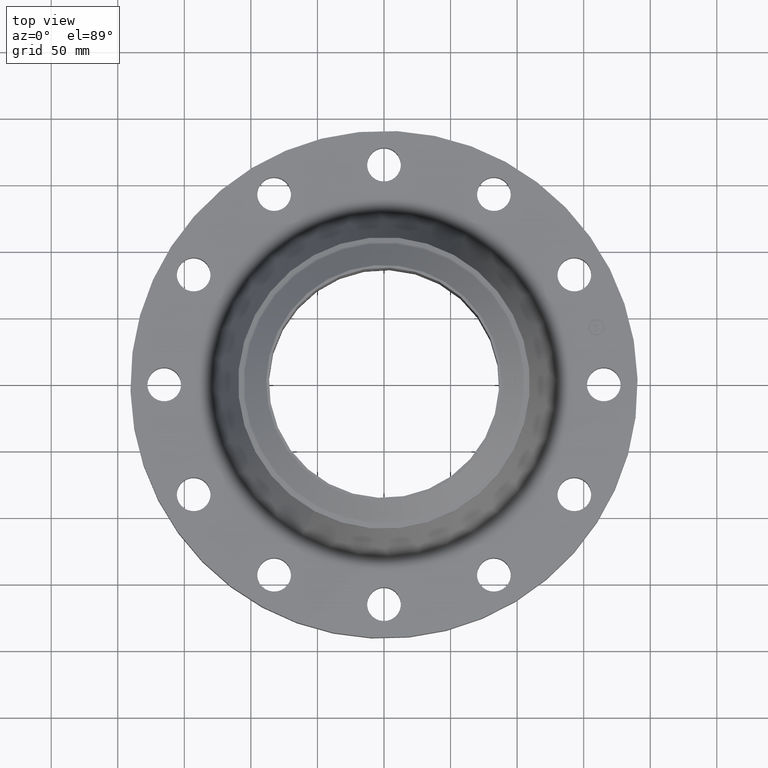
[diagram: clean part render]
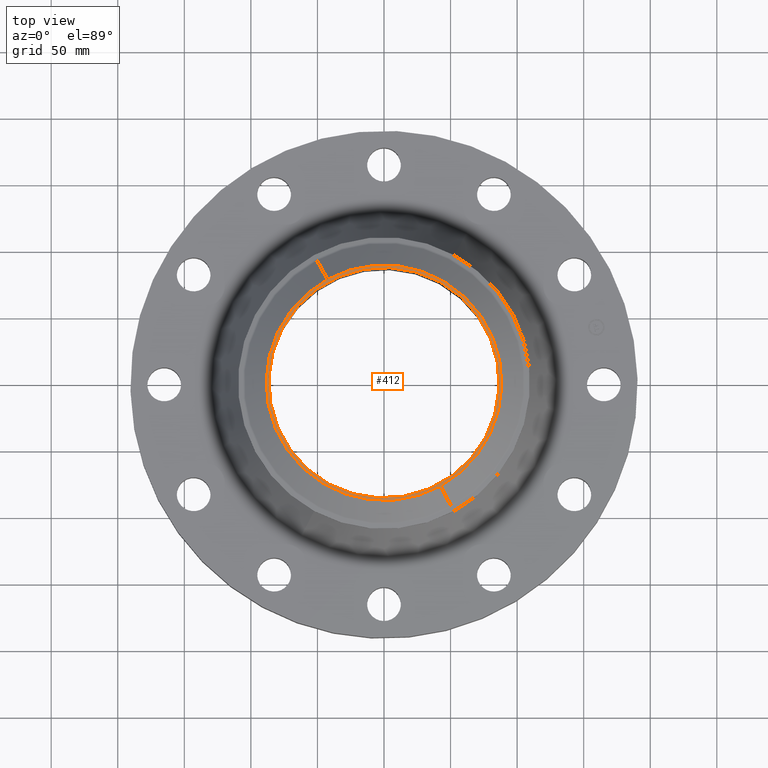
[diagram: same view with one face highlighted and labeled with its STEP entity id]
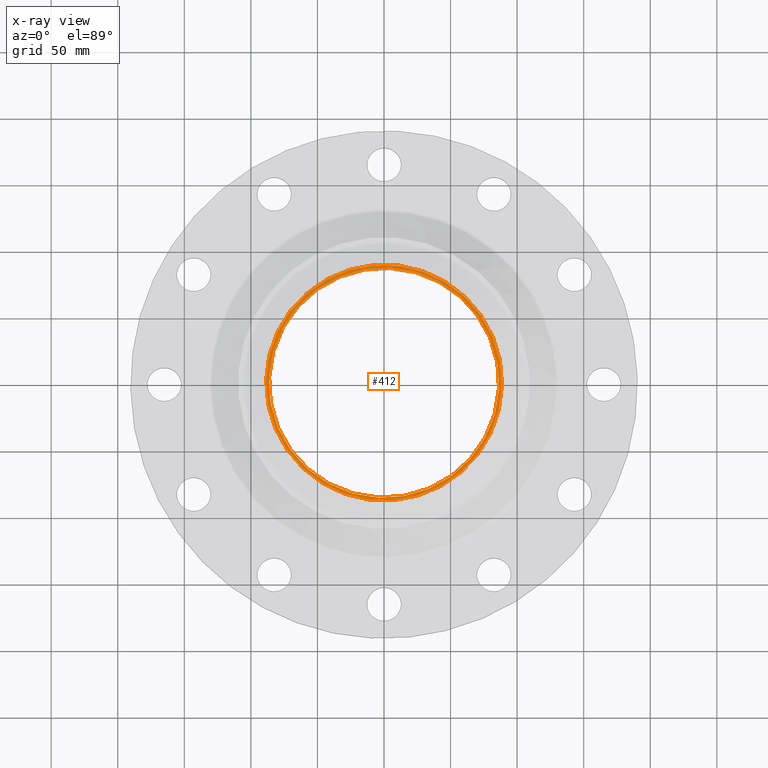
[diagram: x-ray of the same camera — body ghosted, the highlighted face saturated]
A machine part, top view. The second image highlights one B-rep face of the part: STEP entity #412.
The next image is the same camera in x-ray: the body ghosted, the highlighted face saturated — about 0% of this face is hidden behind the body in this view.
In plain terms, the highlighted planar face has unit normal (0, 0, -1).
Its self-contained STEP definition (entity closure, byte-faithful):
#347=AXIS2_PLACEMENT_3D('Circle Axis2P3D',#345,#346,$) ;
#383=AXIS2_PLACEMENT_3D('Plane Axis2P3D',#380,#381,#382) ;
#387=AXIS2_PLACEMENT_3D('Circle Axis2P3D',#385,#386,$) ;
#396=AXIS2_PLACEMENT_3D('Circle Axis2P3D',#394,#395,$) ;
#405=AXIS2_PLACEMENT_3D('Circle Axis2P3D',#403,#404,$) ;
#345=CARTESIAN_POINT('Axis2P3D Location',(0.,0.,4.32000000002)) ;
#349=CARTESIAN_POINT('Vertex',(1.67091313967,-3.05858598622,4.32000000002)) ;
#351=CARTESIAN_POINT('Vertex',(-1.67091313967,3.05858598622,4.32000000002)) ;
#380=CARTESIAN_POINT('Axis2P3D Location',(0.,4.31500000002,4.32000000002)) ;
#385=CARTESIAN_POINT('Axis2P3D Location',(0.,0.,4.32000000002)) ;
#394=CARTESIAN_POINT('Axis2P3D Location',(0.,0.,4.32000000002)) ;
#398=CARTESIAN_POINT('Vertex',(-1.63316309726,-2.98948499709,4.32000000002)) ;
#400=CARTESIAN_POINT('Vertex',(1.63316309726,2.98948499709,4.32000000002)) ;
#403=CARTESIAN_POINT('Axis2P3D Location',(0.,0.,4.32000000002)) ;
#346=DIRECTION('Axis2P3D Direction',(0.,0.,-0.0393700787402)) ;
#381=DIRECTION('Axis2P3D Direction',(0.,0.,-0.0393700787402)) ;
#382=DIRECTION('Axis2P3D XDirection',(0.0393700787402,0.,0.)) ;
#386=DIRECTION('Axis2P3D Direction',(0.,0.,-0.0393700787402)) ;
#395=DIRECTION('Axis2P3D Direction',(0.,0.,-0.0393700787402)) ;
#404=DIRECTION('Axis2P3D Direction',(0.,0.,-0.0393700787402)) ;
#391=ORIENTED_EDGE('',*,*,#353,.T.) ;
#392=ORIENTED_EDGE('',*,*,#389,.T.) ;
#409=ORIENTED_EDGE('',*,*,#402,.T.) ;
#410=ORIENTED_EDGE('',*,*,#407,.T.) ;
#411=FACE_BOUND('',#408,.T.) ;
#412=ADVANCED_FACE('PartBody',(#393,#411),#384,.F.) ;
#348=CIRCLE('generated circle',#347,3.48524015749) ;
#388=CIRCLE('generated circle',#387,3.48524015749) ;
#397=CIRCLE('generated circle',#396,3.40650000001) ;
#406=CIRCLE('generated circle',#405,3.40650000001) ;
#353=EDGE_CURVE('',#350,#352,#348,.F.) ;
#389=EDGE_CURVE('',#352,#350,#388,.F.) ;
#402=EDGE_CURVE('',#399,#401,#397,.T.) ;
#407=EDGE_CURVE('',#401,#399,#406,.T.) ;
#390=EDGE_LOOP('',(#391,#392)) ;
#408=EDGE_LOOP('',(#409,#410)) ;
#393=FACE_OUTER_BOUND('',#390,.T.) ;
#384=PLANE('',#383) ;
#350=VERTEX_POINT('',#349) ;
#352=VERTEX_POINT('',#351) ;
#399=VERTEX_POINT('',#398) ;
#401=VERTEX_POINT('',#400) ;